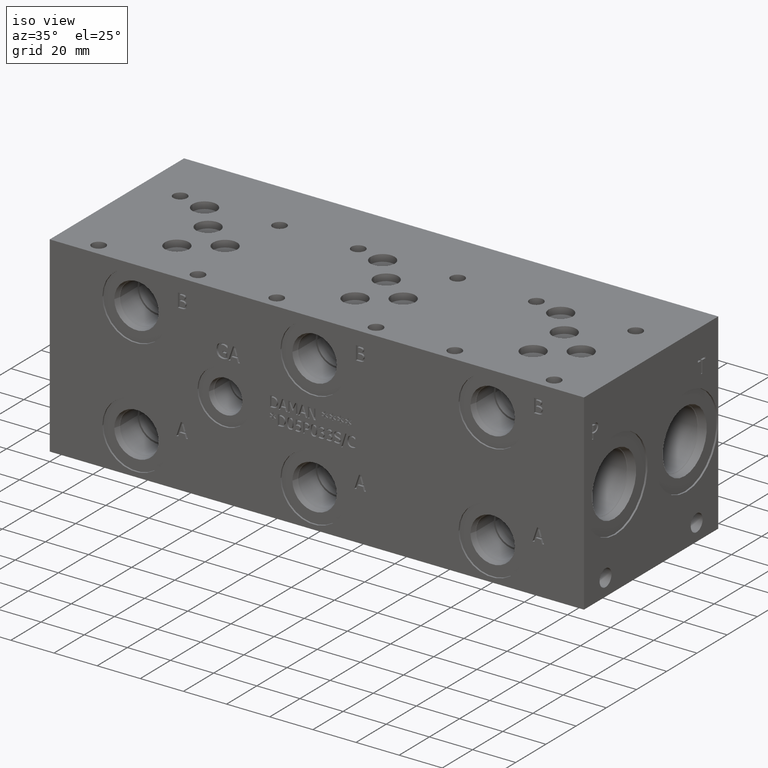
[diagram: clean part render]
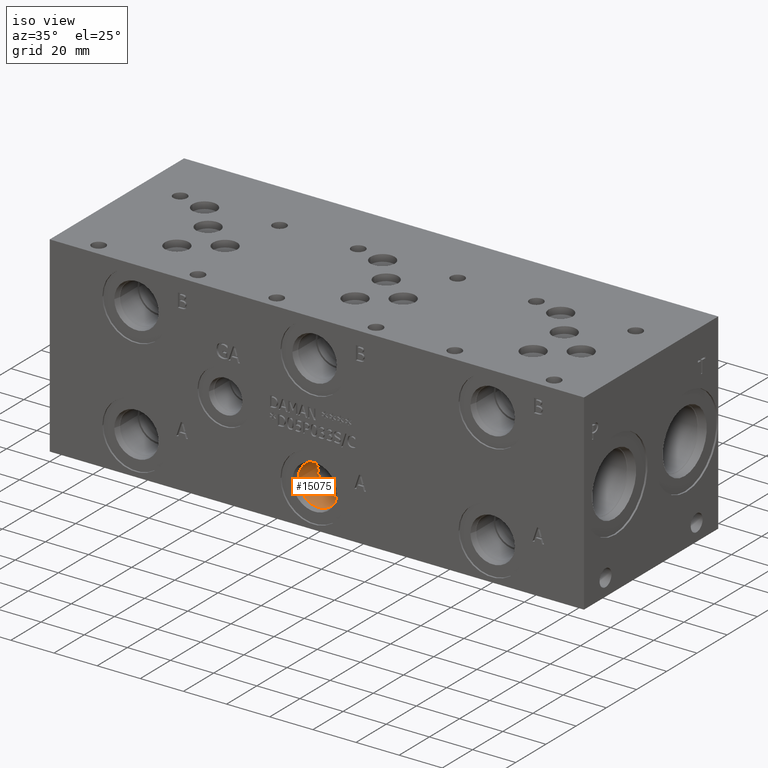
[diagram: same view with one face highlighted and labeled with its STEP entity id]
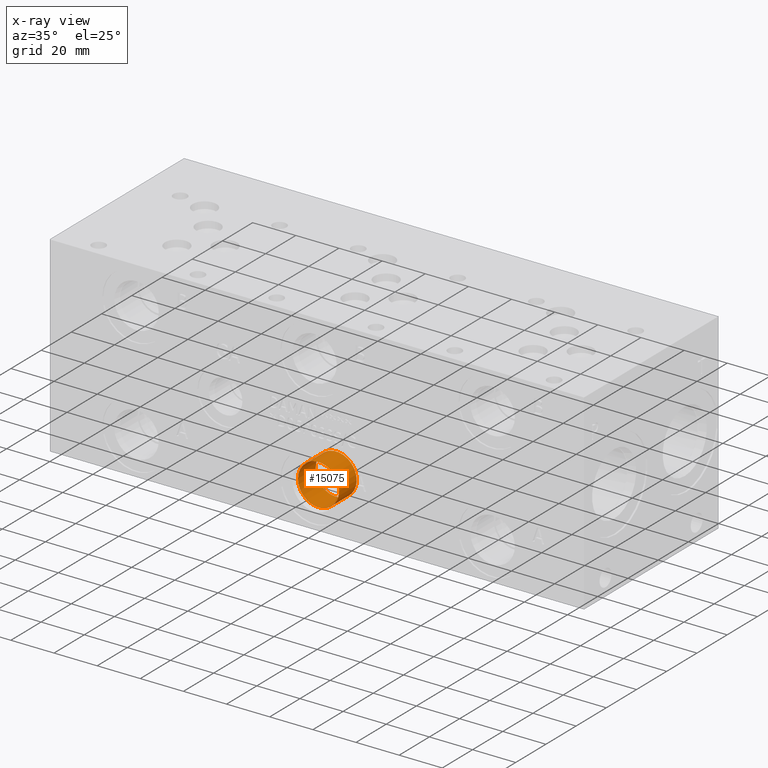
[diagram: x-ray of the same camera — body ghosted, the highlighted face saturated]
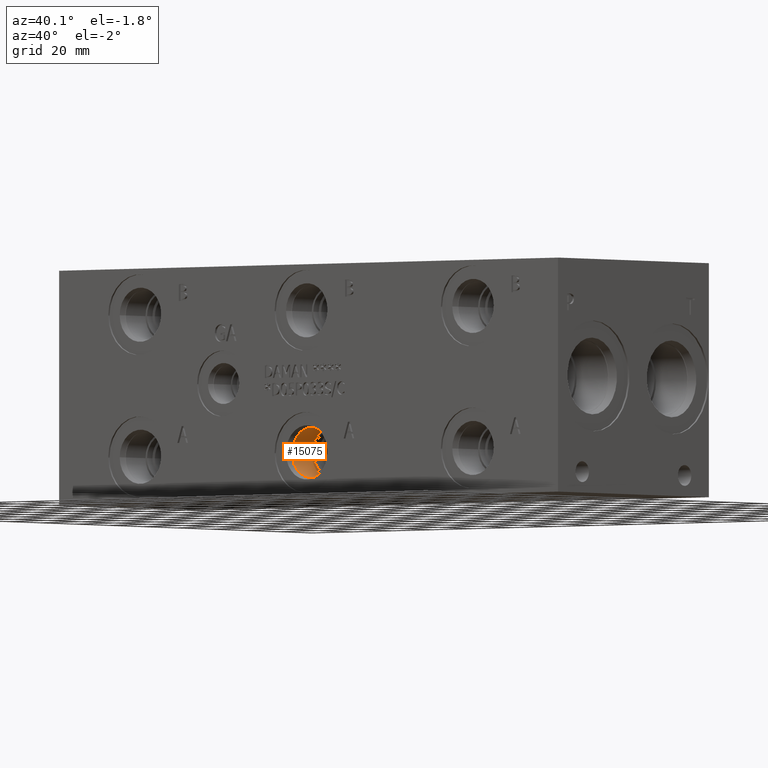
[diagram: same view with one face highlighted and labeled with its STEP entity id]
A machine part, iso view. The second image highlights one B-rep face of the part: STEP entity #15075.
The next image is the same camera in x-ray: the body ghosted, the highlighted face saturated — about 0% of this face is hidden behind the body in this view.
A second angle (auxiliary view) of the same face is appended — the face is thin or edge-on in the first view.
In plain terms, the highlighted cylindrical surface (bore or boss wall) has radius 9.525 mm, axis along (0, -1, 0).
Its self-contained STEP definition (entity closure, byte-faithful):
#154=CYLINDRICAL_SURFACE('',#15925,9.525);
#590=CIRCLE('',#15822,9.525);
#650=CIRCLE('',#15922,9.525);
#651=CIRCLE('',#15923,9.525);
#2031=FACE_OUTER_BOUND('',#2908,.T.);
#2908=EDGE_LOOP('',(#12966,#12967,#12968,#12969,#12970));
#4271=LINE('',#25951,#5577);
#5577=VECTOR('',#18892,9.525);
#6869=VERTEX_POINT('',#25744);
#6935=VERTEX_POINT('',#25944);
#6936=VERTEX_POINT('',#25945);
#8906=EDGE_CURVE('',#6869,#6869,#590,.T.);
#8999=EDGE_CURVE('',#6935,#6936,#650,.T.);
#9000=EDGE_CURVE('',#6936,#6935,#651,.T.);
#9002=EDGE_CURVE('',#6869,#6936,#4271,.T.);
#12966=ORIENTED_EDGE('',*,*,#8906,.T.);
#12967=ORIENTED_EDGE('',*,*,#9002,.T.);
#12968=ORIENTED_EDGE('',*,*,#8999,.F.);
#12969=ORIENTED_EDGE('',*,*,#9000,.F.);
#12970=ORIENTED_EDGE('',*,*,#9002,.F.);
#15075=ADVANCED_FACE('',(#2031),#154,.F.);
#15822=AXIS2_PLACEMENT_3D('',#25746,#18651,#18652);
#15922=AXIS2_PLACEMENT_3D('',#25946,#18884,#18885);
#15923=AXIS2_PLACEMENT_3D('',#25947,#18886,#18887);
#15925=AXIS2_PLACEMENT_3D('',#25950,#18890,#18891);
#18651=DIRECTION('center_axis',(0.,-1.,0.));
#18652=DIRECTION('ref_axis',(1.,0.,0.));
#18884=DIRECTION('center_axis',(0.,-1.,0.));
#18885=DIRECTION('ref_axis',(1.,0.,0.));
#18886=DIRECTION('center_axis',(0.,-1.,0.));
#18887=DIRECTION('ref_axis',(1.,0.,0.));
#18890=DIRECTION('center_axis',(0.,-1.,0.));
#18891=DIRECTION('ref_axis',(1.,0.,0.));
#18892=DIRECTION('',(0.,1.,0.));
#25744=CARTESIAN_POINT('',(112.6998,3.4036,17.4752));
#25746=CARTESIAN_POINT('Origin',(122.2248,3.4036,17.4752));
#25944=CARTESIAN_POINT('',(131.7498,15.0622,17.4752));
#25945=CARTESIAN_POINT('',(112.6998,15.0622,17.4752));
#25946=CARTESIAN_POINT('Origin',(122.2248,15.0622,17.4752));
#25947=CARTESIAN_POINT('Origin',(122.2248,15.0622,17.4752));
#25950=CARTESIAN_POINT('Origin',(122.2248,7.5311,17.4752));
#25951=CARTESIAN_POINT('',(112.6998,7.5311,17.4752));